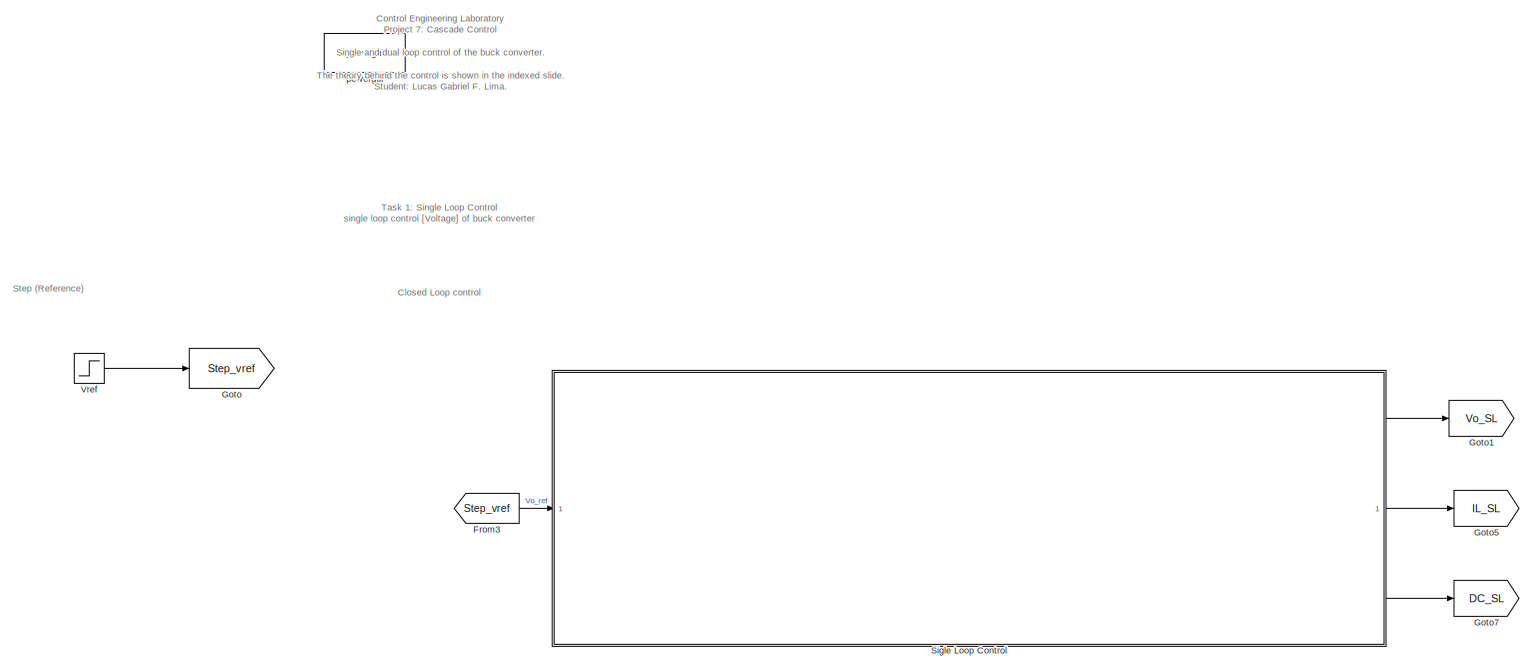
[diagram: root canvas - part 1/5, top left region]
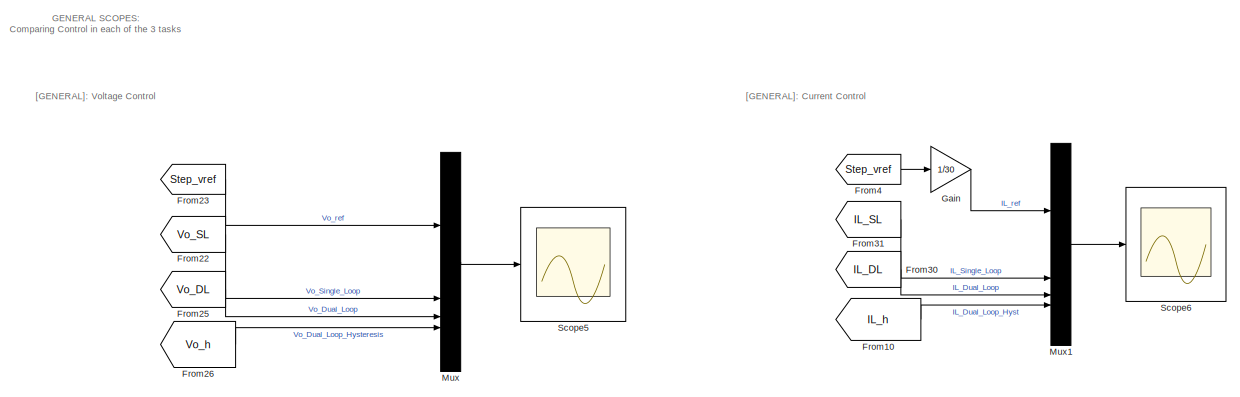
[diagram: root canvas - part 2/5, top center region]
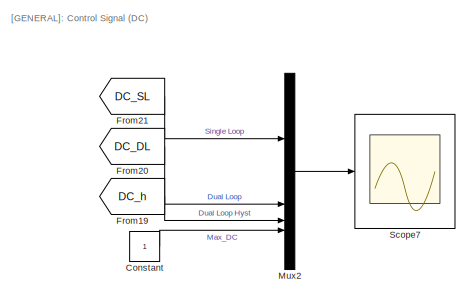
[diagram: root canvas - part 3/5, middle right region]
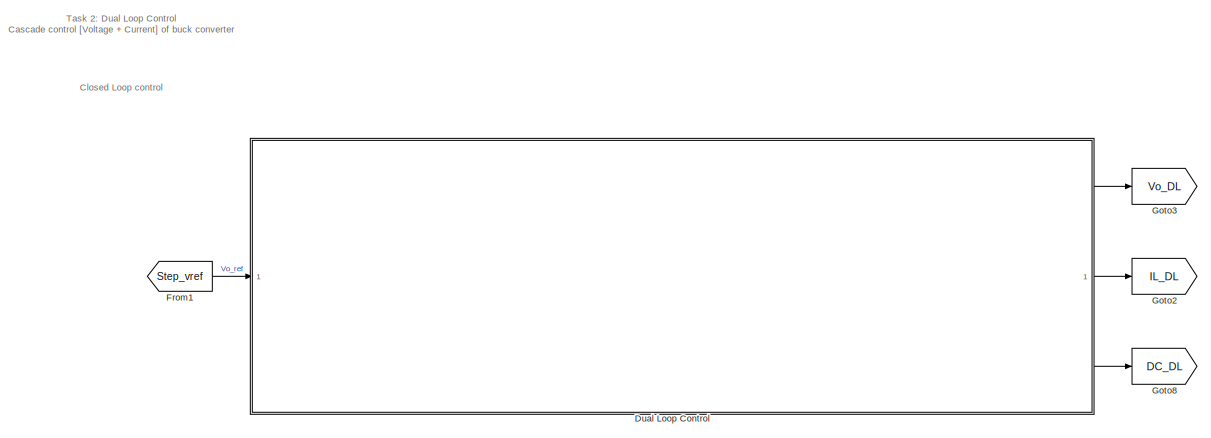
[diagram: root canvas - part 4/5, bottom left region]
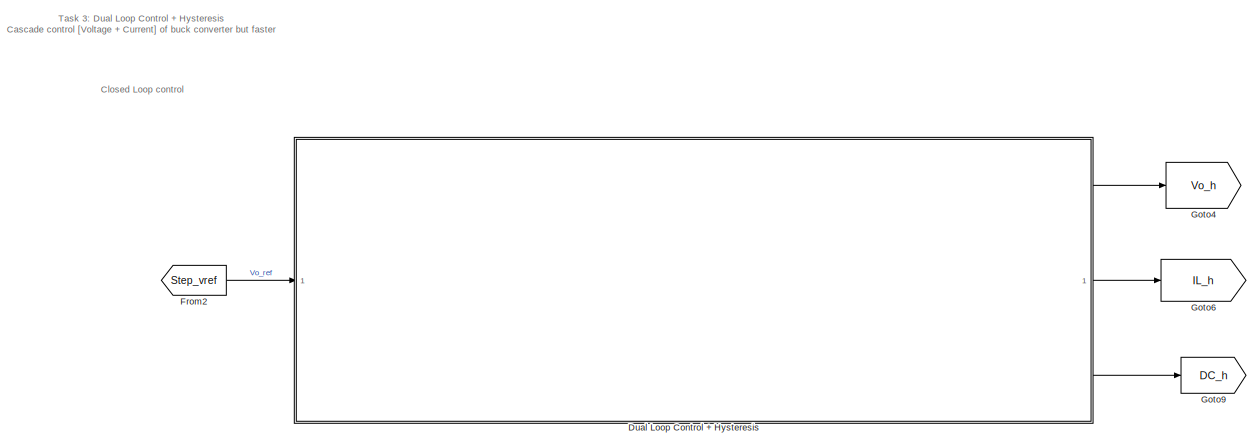
[diagram: root canvas - part 5/5, bottom center region]
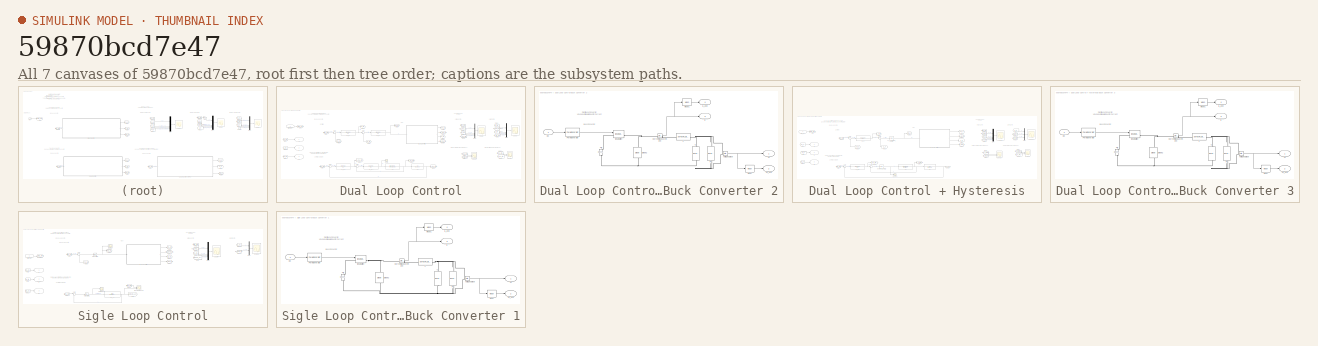
[diagram: thumbnail index - all 7 canvases of the model, root first then tree order]
MODEL slx_59870bcd7e47
KIND model
CONFIG AbsTol = auto
CONFIG EnableMultiTasking = off
CONFIG FixedStep = 1e-8
CONFIG MaxStep = auto
CONFIG MinStep = auto
CONFIG RelTol = 1e-3
CONFIG SampleTimeConstraint = Unconstrained
CONFIG SolverName = FixedStepAuto
CONFIG StartTime = 0.0
CONFIG StopTime = 20e-3
BLOCK [Constant] Constant
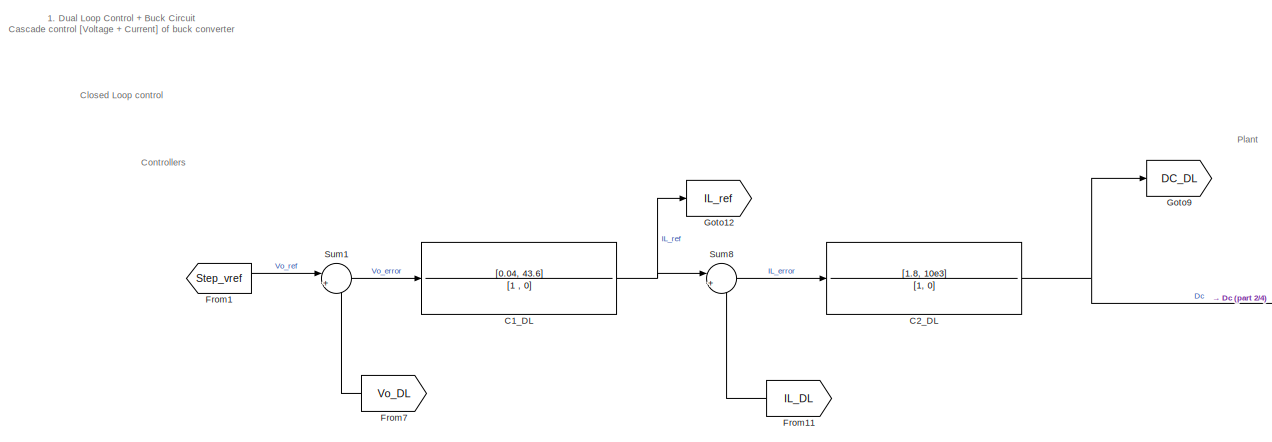
[diagram: Dual Loop Control - part 1/4, top left region]
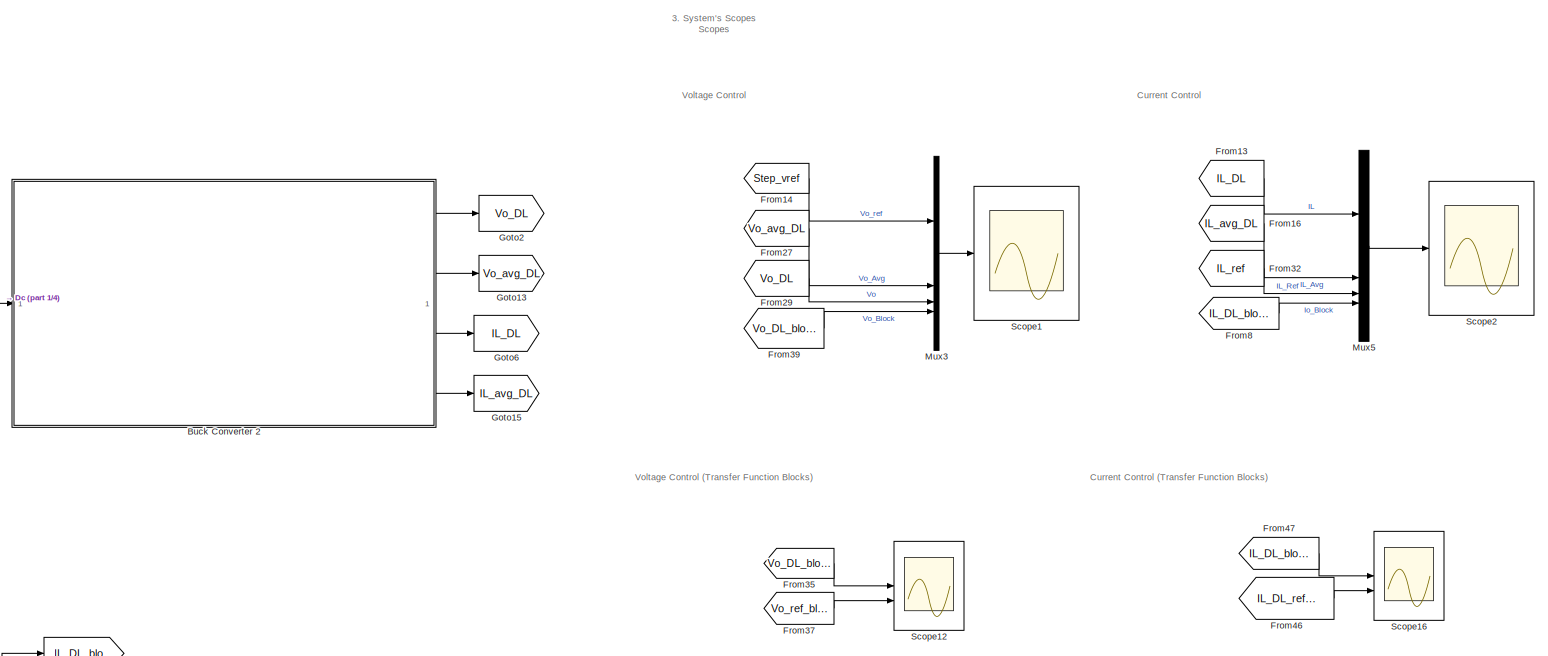
[diagram: Dual Loop Control - part 2/4, middle right region]
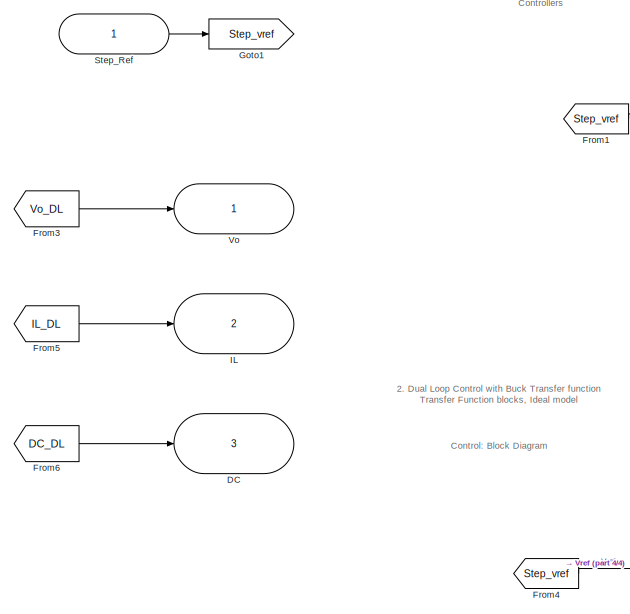
[diagram: Dual Loop Control - part 3/4, middle left region]
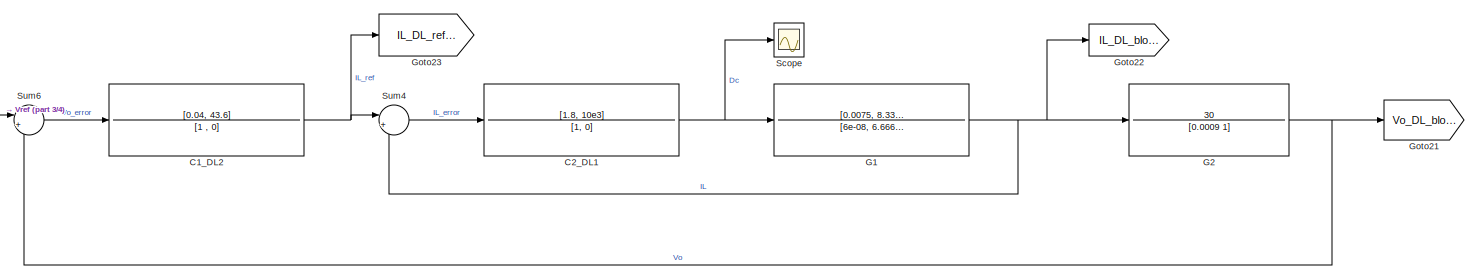
[diagram: Dual Loop Control - part 4/4, bottom center region]
BLOCK [SubSystem] Dual Loop Control
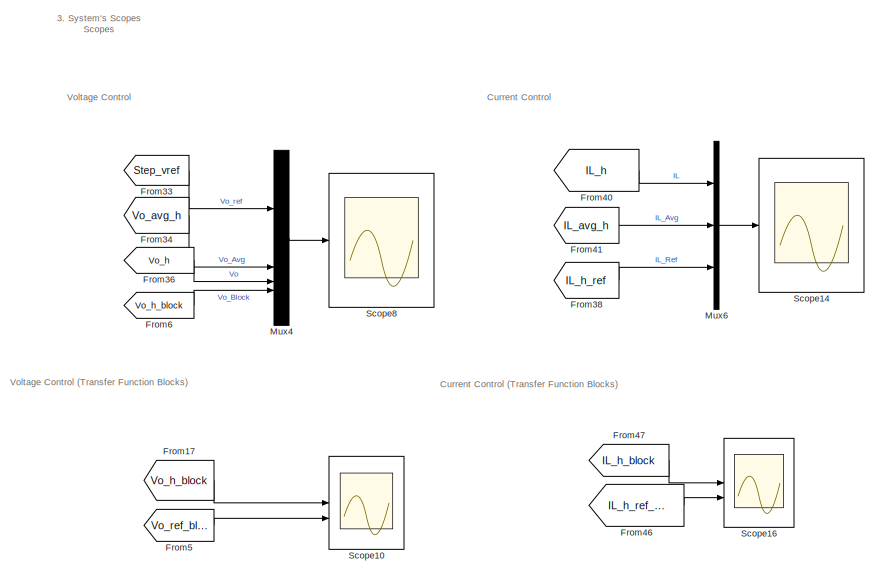
[diagram: Dual Loop Control + Hysteresis - part 1/6, middle right region]
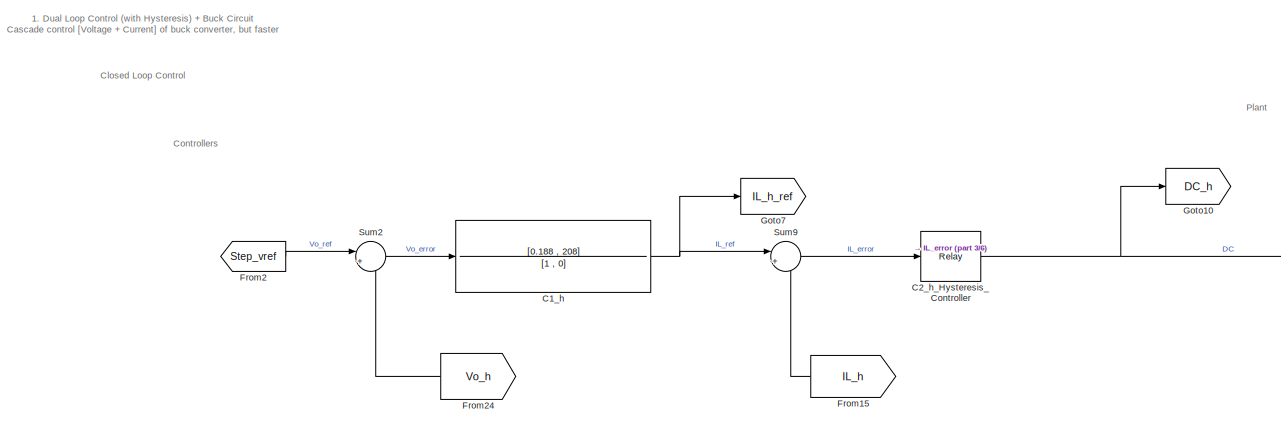
[diagram: Dual Loop Control + Hysteresis - part 2/6, top left region]
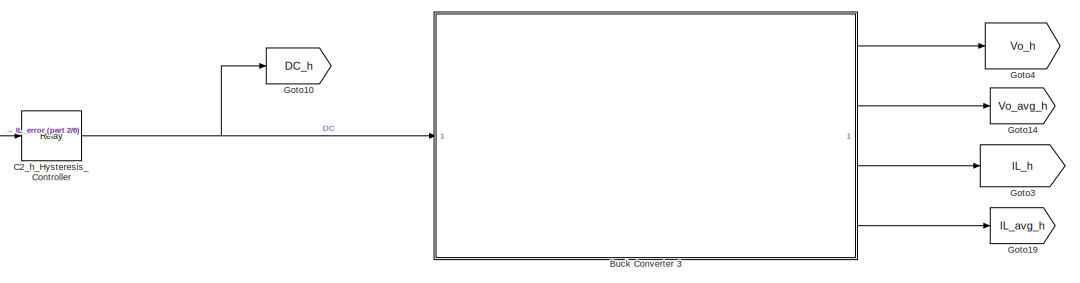
[diagram: Dual Loop Control + Hysteresis - part 3/6, central region]
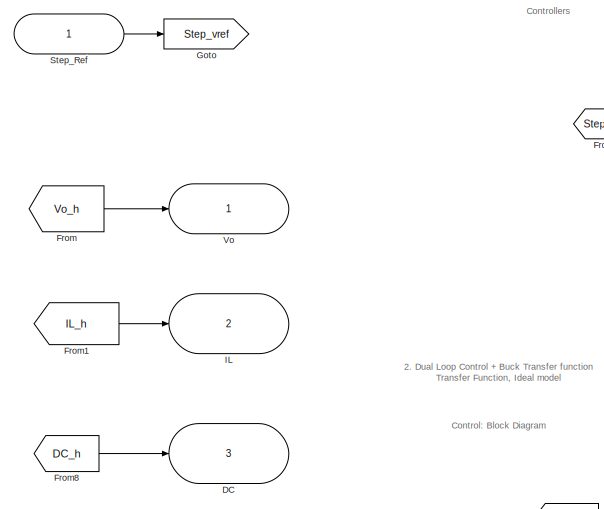
[diagram: Dual Loop Control + Hysteresis - part 4/6, middle left region]
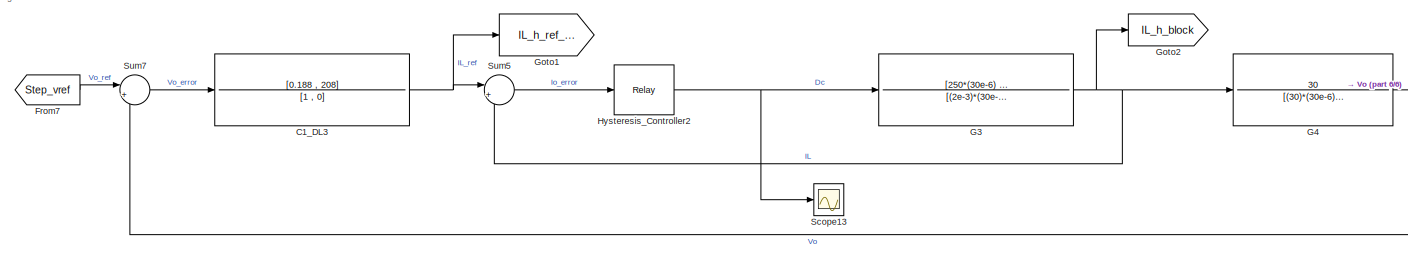
[diagram: Dual Loop Control + Hysteresis - part 5/6, bottom center region]
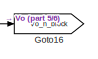
[diagram: Dual Loop Control + Hysteresis - part 6/6, bottom center region]
BLOCK [SubSystem] Dual Loop Control + Hysteresis
BLOCK [SubSystem] Dual Loop Control + Hysteresis/Buck Converter 3
BLOCK [Reference] Dual Loop Control + Hysteresis/Buck Converter 3/C  REF=spsSeriesRLCBranchLib/Series RLC Branch
  LibrarySourceBlock = sps_lib/Passives/Series RLC Branch
  NameLocation = left
  SourceBlock = spsSeriesRLCBranchLib/Series RLC Branch
  SourceType = Series RLC Branch
BLOCK [Reference] Dual Loop Control + Hysteresis/Buck Converter 3/Current Measurement  REF=spsCurrentMeasurementLib/Current Measurement
  LibrarySourceBlock = sps_lib/Sensors and Measurements/Current Measurement
  SourceBlock = spsCurrentMeasurementLib/Current Measurement
  SourceType = Current Measurement
  UserDataPersistent = on
BLOCK [Inport] Dual Loop Control + Hysteresis/Buck Converter 3/DC
BLOCK [Reference] Dual Loop Control + Hysteresis/Buck Converter 3/Diode2  REF=spsDiodeLib/Diode
  LibrarySourceBlock = sps_lib/Power Electronics/Diode
  NameLocation = right
  SourceBlock = spsDiodeLib/Diode
  SourceType = Diode
BLOCK [Outport] Dual Loop Control + Hysteresis/Buck Converter 3/IL
  Port = 3
BLOCK [Outport] Dual Loop Control + Hysteresis/Buck Converter 3/IL_avg
  Port = 4
BLOCK [Reference] Dual Loop Control + Hysteresis/Buck Converter 3/Ideal Switch  REF=spsIdealSwitchLib/Ideal Switch
  LibrarySourceBlock = sps_lib/Power Electronics/Ideal Switch
  SourceBlock = spsIdealSwitchLib/Ideal Switch
  SourceType = Ideal Switch
BLOCK [Reference] Dual Loop Control + Hysteresis/Buck Converter 3/L  REF=spsSeriesRLCBranchLib/Series RLC Branch
  LibrarySourceBlock = sps_lib/Passives/Series RLC Branch
  SourceBlock = spsSeriesRLCBranchLib/Series RLC Branch
  SourceType = Series RLC Branch
BLOCK [Reference] Dual Loop Control + Hysteresis/Buck Converter 3/Mean  REF=spsMeanLib/Mean
  LibrarySourceBlock = sps_lib/Sensors and Measurements/Mean
  SourceBlock = spsMeanLib/Mean
  SourceType = Mean
BLOCK [Reference] Dual Loop Control + Hysteresis/Buck Converter 3/Mean1  REF=spsMeanLib/Mean
  LibrarySourceBlock = sps_lib/Sensors and Measurements/Mean
  SourceBlock = spsMeanLib/Mean
  SourceType = Mean
BLOCK [Reference] Dual Loop Control + Hysteresis/Buck Converter 3/PWM Generator  REF=eePwmGenerator/PWM Generator
  LibrarySourceBlock = ee_sl_lib/Pulse Width\nModulation/PWM Generator
  SourceBlock = eePwmGenerator/PWM Generator
  SourceType = PWM Generator
BLOCK [Reference] Dual Loop Control + Hysteresis/Buck Converter 3/R  REF=spsSeriesRLCBranchLib/Series RLC Branch
  LibrarySourceBlock = sps_lib/Passives/Series RLC Branch
  NameLocation = right
  SourceBlock = spsSeriesRLCBranchLib/Series RLC Branch
  SourceType = Series RLC Branch
BLOCK [Reference] Dual Loop Control + Hysteresis/Buck Converter 3/Vg  REF=spsDCVoltageSourceLib/DC Voltage Source
  LibrarySourceBlock = sps_lib/Sources/DC Voltage Source
  NameLocation = left
  SourceBlock = spsDCVoltageSourceLib/DC Voltage Source
  SourceType = DC Voltage Source
BLOCK [Outport] Dual Loop Control + Hysteresis/Buck Converter 3/Vo
BLOCK [Outport] Dual Loop Control + Hysteresis/Buck Converter 3/Vo_avg
  Port = 2
BLOCK [Reference] Dual Loop Control + Hysteresis/Buck Converter 3/Voltage Output  REF=spsVoltageMeasurementLib/Voltage Measurement
  LibrarySourceBlock = sps_lib/Sensors and Measurements/Voltage Measurement
  SourceBlock = spsVoltageMeasurementLib/Voltage Measurement
  SourceType = Voltage Measurement
  UserDataPersistent = on
BLOCK [TransferFcn] Dual Loop Control + Hysteresis/C1_DL3
  Denominator = [1 , 0]
  Numerator = [0.188 , 208]
BLOCK [TransferFcn] Dual Loop Control + Hysteresis/C1_h
  Denominator = [1 , 0]
  Numerator = [0.188 , 208]
BLOCK [Relay] Dual Loop Control + Hysteresis/C2_h_Hysteresis_Controller
  OffSwitchValue = -0.2/2
  OnSwitchValue = 0.2/2
BLOCK [Outport] Dual Loop Control + Hysteresis/DC
  Port = 3
BLOCK [From] Dual Loop Control + Hysteresis/From
  GotoTag = Vo_h
BLOCK [From] Dual Loop Control + Hysteresis/From1
  GotoTag = IL_h
BLOCK [From] Dual Loop Control + Hysteresis/From15
  GotoTag = IL_h
  NameLocation = top
BLOCK [From] Dual Loop Control + Hysteresis/From17
  GotoTag = Vo_h_block
BLOCK [From] Dual Loop Control + Hysteresis/From2
  GotoTag = Step_vref
BLOCK [From] Dual Loop Control + Hysteresis/From24
  GotoTag = Vo_h
  NameLocation = top
BLOCK [From] Dual Loop Control + Hysteresis/From33
  GotoTag = Step_vref
BLOCK [From] Dual Loop Control + Hysteresis/From34
  GotoTag = Vo_avg_h
BLOCK [From] Dual Loop Control + Hysteresis/From36
  GotoTag = Vo_h
BLOCK [From] Dual Loop Control + Hysteresis/From38
  GotoTag = IL_h_ref
BLOCK [From] Dual Loop Control + Hysteresis/From40
  GotoTag = IL_h
BLOCK [From] Dual Loop Control + Hysteresis/From41
  GotoTag = IL_avg_h
BLOCK [From] Dual Loop Control + Hysteresis/From46
  GotoTag = IL_h_ref_block
  NameLocation = top
BLOCK [From] Dual Loop Control + Hysteresis/From47
  GotoTag = IL_h_block
  NameLocation = top
BLOCK [From] Dual Loop Control + Hysteresis/From5
  GotoTag = Vo_ref_block
  NameLocation = top
BLOCK [From] Dual Loop Control + Hysteresis/From6
  GotoTag = Vo_h_block
BLOCK [From] Dual Loop Control + Hysteresis/From7
  GotoTag = Step_vref
BLOCK [From] Dual Loop Control + Hysteresis/From8
  GotoTag = DC_h
BLOCK [TransferFcn] Dual Loop Control + Hysteresis/G3
  Denominator = [(2e-3)*(30e-6)  (2e-3)/30  1]
  Numerator = [250*(30e-6) (250/30)]
BLOCK [TransferFcn] Dual Loop Control + Hysteresis/G4
  Denominator = [(30)*(30e-6) 1]
  Numerator = 30
BLOCK [Goto] Dual Loop Control + Hysteresis/Goto
  GotoTag = Step_vref
BLOCK [Goto] Dual Loop Control + Hysteresis/Goto1
  GotoTag = IL_h_ref_block
BLOCK [Goto] Dual Loop Control + Hysteresis/Goto10
  GotoTag = DC_h
  NameLocation = top
BLOCK [Goto] Dual Loop Control + Hysteresis/Goto14
  GotoTag = Vo_avg_h
BLOCK [Goto] Dual Loop Control + Hysteresis/Goto16
  GotoTag = Vo_h_block
BLOCK [Goto] Dual Loop Control + Hysteresis/Goto19
  GotoTag = IL_avg_h
BLOCK [Goto] Dual Loop Control + Hysteresis/Goto2
  GotoTag = IL_h_block
BLOCK [Goto] Dual Loop Control + Hysteresis/Goto3
  GotoTag = IL_h
  NameLocation = top
BLOCK [Goto] Dual Loop Control + Hysteresis/Goto4
  GotoTag = Vo_h
  NameLocation = top
BLOCK [Goto] Dual Loop Control + Hysteresis/Goto7
  GotoTag = IL_h_ref
  NameLocation = top
BLOCK [Relay] Dual Loop Control + Hysteresis/Hysteresis_Controller2
  OffSwitchValue = -0.2/2
  OnSwitchValue = 0.2/2
BLOCK [Outport] Dual Loop Control + Hysteresis/IL
  Port = 2
BLOCK [Mux] Dual Loop Control + Hysteresis/Mux4
  DisplayOption = bar
BLOCK [Mux] Dual Loop Control + Hysteresis/Mux6
  DisplayOption = bar
  Inputs = 3
BLOCK [Scope] Dual Loop Control + Hysteresis/Scope10
  Floating = off
  NumInputPorts = 2
  ScopeSpecificationString = Simulink.scopes.TimeScopeBlockCfg('CurrentConfiguration', extmgr.ConfigurationSet(extmgr.Configuration('Core','General UI',true),extmgr.Configuration('Core','Source UI',true),extmgr.Configuration('Sources','WiredSimulink',true,'DataLoggingVariableName','ScopeData5'),extmgr.Configuration('Visuals','Time Domain',true,'SerializedDisplays',{struct('MinYLimReal','-8.34782','MaxYLimReal','75.13037','YLa...<+1492ch>
BLOCK [Scope] Dual Loop Control + Hysteresis/Scope13
  Floating = off
  NumInputPorts = 1
  ScopeSpecificationString = Simulink.scopes.TimeScopeBlockCfg('CurrentConfiguration', extmgr.ConfigurationSet(extmgr.Configuration('Core','General UI',true),extmgr.Configuration('Core','Source UI',true),extmgr.Configuration('Sources','WiredSimulink',true,'DataLoggingVariableName','ScopeData8'),extmgr.Configuration('Visuals','Time Domain',true,'SerializedDisplays',{struct('MinYLimReal','-0.125','MaxYLimReal','1.125','YLabelRe...<+1403ch>
BLOCK [Scope] Dual Loop Control + Hysteresis/Scope14
  Floating = off
  NumInputPorts = 1
  ScopeSpecificationString = Simulink.scopes.TimeScopeBlockCfg('CurrentConfiguration', extmgr.ConfigurationSet(extmgr.Configuration('Core','General UI',true),extmgr.Configuration('Core','Source UI',true),extmgr.Configuration('Sources','WiredSimulink',true,'DataLoggingVariableName','ScopeData9'),extmgr.Configuration('Visuals','Time Domain',true,'SerializedDisplays',{struct('MinYLimReal','-1.42066','MaxYLimReal','12.78592','YLa...<+1702ch>
BLOCK [Scope] Dual Loop Control + Hysteresis/Scope16
  Floating = off
  NumInputPorts = 2
  ScopeSpecificationString = Simulink.scopes.TimeScopeBlockCfg('CurrentConfiguration', extmgr.ConfigurationSet(extmgr.Configuration('Core','General UI',true),extmgr.Configuration('Core','Source UI',true),extmgr.Configuration('Sources','WiredSimulink',true,'DataLoggingVariableName','ScopeData1'),extmgr.Configuration('Visuals','Time Domain',true,'SerializedDisplays',{struct('MinYLimReal','1.88078','MaxYLimReal','3.06942','YLabe...<+1488ch>
BLOCK [Scope] Dual Loop Control + Hysteresis/Scope8
  Floating = off
  NumInputPorts = 1
  ScopeSpecificationString = Simulink.scopes.TimeScopeBlockCfg('CurrentConfiguration', extmgr.ConfigurationSet(extmgr.Configuration('Core','General UI',true),extmgr.Configuration('Core','Source UI',true),extmgr.Configuration('Sources','WiredSimulink',true,'DataLoggingVariableName','ScopeData1'),extmgr.Configuration('Visuals','Time Domain',true,'SerializedDisplays',{struct('MinYLimReal','59.43849','MaxYLimReal','66.21696','YLa...<+1674ch>
BLOCK [Inport] Dual Loop Control + Hysteresis/Step_Ref
BLOCK [Sum] Dual Loop Control + Hysteresis/Sum2
  Inputs = |+-
BLOCK [Sum] Dual Loop Control + Hysteresis/Sum5
  Inputs = |+-
BLOCK [Sum] Dual Loop Control + Hysteresis/Sum7
  Inputs = |+-
BLOCK [Sum] Dual Loop Control + Hysteresis/Sum9
  Inputs = |+-
BLOCK [Outport] Dual Loop Control + Hysteresis/Vo
BLOCK [SubSystem] Dual Loop Control/Buck Converter 2
BLOCK [Reference] Dual Loop Control/Buck Converter 2/C  REF=spsSeriesRLCBranchLib/Series RLC Branch
  LibrarySourceBlock = sps_lib/Passives/Series RLC Branch
  NameLocation = left
  SourceBlock = spsSeriesRLCBranchLib/Series RLC Branch
  SourceType = Series RLC Branch
BLOCK [Reference] Dual Loop Control/Buck Converter 2/Current Measurement  REF=spsCurrentMeasurementLib/Current Measurement
  LibrarySourceBlock = sps_lib/Sensors and Measurements/Current Measurement
  SourceBlock = spsCurrentMeasurementLib/Current Measurement
  SourceType = Current Measurement
  UserDataPersistent = on
BLOCK [Inport] Dual Loop Control/Buck Converter 2/DC
BLOCK [Reference] Dual Loop Control/Buck Converter 2/Diode2  REF=spsDiodeLib/Diode
  LibrarySourceBlock = sps_lib/Power Electronics/Diode
  NameLocation = right
  SourceBlock = spsDiodeLib/Diode
  SourceType = Diode
BLOCK [Outport] Dual Loop Control/Buck Converter 2/IL
  Port = 3
BLOCK [Outport] Dual Loop Control/Buck Converter 2/IL_avg
  Port = 4
BLOCK [Reference] Dual Loop Control/Buck Converter 2/Ideal Switch  REF=spsIdealSwitchLib/Ideal Switch
  LibrarySourceBlock = sps_lib/Power Electronics/Ideal Switch
  SourceBlock = spsIdealSwitchLib/Ideal Switch
  SourceType = Ideal Switch
BLOCK [Reference] Dual Loop Control/Buck Converter 2/L  REF=spsSeriesRLCBranchLib/Series RLC Branch
  LibrarySourceBlock = sps_lib/Passives/Series RLC Branch
  SourceBlock = spsSeriesRLCBranchLib/Series RLC Branch
  SourceType = Series RLC Branch
BLOCK [Reference] Dual Loop Control/Buck Converter 2/Mean  REF=spsMeanLib/Mean
  LibrarySourceBlock = sps_lib/Sensors and Measurements/Mean
  SourceBlock = spsMeanLib/Mean
  SourceType = Mean
BLOCK [Reference] Dual Loop Control/Buck Converter 2/Mean1  REF=spsMeanLib/Mean
  LibrarySourceBlock = sps_lib/Sensors and Measurements/Mean
  SourceBlock = spsMeanLib/Mean
  SourceType = Mean
BLOCK [Reference] Dual Loop Control/Buck Converter 2/PWM Generator  REF=eePwmGenerator/PWM Generator
  LibrarySourceBlock = ee_sl_lib/Pulse Width\nModulation/PWM Generator
  SourceBlock = eePwmGenerator/PWM Generator
  SourceType = PWM Generator
BLOCK [Reference] Dual Loop Control/Buck Converter 2/R  REF=spsSeriesRLCBranchLib/Series RLC Branch
  LibrarySourceBlock = sps_lib/Passives/Series RLC Branch
  NameLocation = right
  SourceBlock = spsSeriesRLCBranchLib/Series RLC Branch
  SourceType = Series RLC Branch
BLOCK [Reference] Dual Loop Control/Buck Converter 2/Vg  REF=spsDCVoltageSourceLib/DC Voltage Source
  LibrarySourceBlock = sps_lib/Sources/DC Voltage Source
  NameLocation = left
  SourceBlock = spsDCVoltageSourceLib/DC Voltage Source
  SourceType = DC Voltage Source
BLOCK [Outport] Dual Loop Control/Buck Converter 2/Vo
BLOCK [Outport] Dual Loop Control/Buck Converter 2/Vo_avg
  Port = 2
BLOCK [Reference] Dual Loop Control/Buck Converter 2/Voltage Output  REF=spsVoltageMeasurementLib/Voltage Measurement
  LibrarySourceBlock = sps_lib/Sensors and Measurements/Voltage Measurement
  SourceBlock = spsVoltageMeasurementLib/Voltage Measurement
  SourceType = Voltage Measurement
  UserDataPersistent = on
BLOCK [TransferFcn] Dual Loop Control/C1_DL
  Denominator = [1 , 0]
  Numerator = [0.04, 43.6]
BLOCK [TransferFcn] Dual Loop Control/C1_DL2
  Denominator = [1 , 0]
  Numerator = [0.04, 43.6]
BLOCK [TransferFcn] Dual Loop Control/C2_DL
  Denominator = [1, 0]
  Numerator = [1.8, 10e3]
BLOCK [TransferFcn] Dual Loop Control/C2_DL1
  Denominator = [1, 0]
  Numerator = [1.8, 10e3]
BLOCK [Outport] Dual Loop Control/DC
  Port = 3
BLOCK [From] Dual Loop Control/From1
  GotoTag = Step_vref
BLOCK [From] Dual Loop Control/From11
  GotoTag = IL_DL
  NameLocation = top
BLOCK [From] Dual Loop Control/From13
  GotoTag = IL_DL
BLOCK [From] Dual Loop Control/From14
  GotoTag = Step_vref
BLOCK [From] Dual Loop Control/From16
  GotoTag = IL_avg_DL
BLOCK [From] Dual Loop Control/From27
  GotoTag = Vo_avg_DL
BLOCK [From] Dual Loop Control/From29
  GotoTag = Vo_DL
BLOCK [From] Dual Loop Control/From3
  GotoTag = Vo_DL
BLOCK [From] Dual Loop Control/From32
  GotoTag = IL_ref
BLOCK [From] Dual Loop Control/From35
  GotoTag = Vo_DL_block
BLOCK [From] Dual Loop Control/From37
  GotoTag = Vo_ref_block
  NameLocation = top
BLOCK [From] Dual Loop Control/From39
  GotoTag = Vo_DL_block
BLOCK [From] Dual Loop Control/From4
  GotoTag = Step_vref
BLOCK [From] Dual Loop Control/From46
  GotoTag = IL_DL_ref_block
  NameLocation = top
BLOCK [From] Dual Loop Control/From47
  GotoTag = IL_DL_block
  NameLocation = top
BLOCK [From] Dual Loop Control/From5
  GotoTag = IL_DL
BLOCK [From] Dual Loop Control/From6
  GotoTag = DC_DL
BLOCK [From] Dual Loop Control/From7
  GotoTag = Vo_DL
  NameLocation = top
BLOCK [From] Dual Loop Control/From8
  GotoTag = IL_DL_block
BLOCK [TransferFcn] Dual Loop Control/G1
  Denominator = [6e-08, 6.6667e-05 ,1]
  Numerator = [0.0075, 8.3333]
BLOCK [TransferFcn] Dual Loop Control/G2
  Denominator = [0.0009 1]
  Numerator = 30
BLOCK [Goto] Dual Loop Control/Goto1
  GotoTag = Step_vref
BLOCK [Goto] Dual Loop Control/Goto12
  GotoTag = IL_ref
BLOCK [Goto] Dual Loop Control/Goto13
  GotoTag = Vo_avg_DL
BLOCK [Goto] Dual Loop Control/Goto15
  GotoTag = IL_avg_DL
BLOCK [Goto] Dual Loop Control/Goto2
  GotoTag = Vo_DL
BLOCK [Goto] Dual Loop Control/Goto21
  GotoTag = Vo_DL_block
BLOCK [Goto] Dual Loop Control/Goto22
  GotoTag = IL_DL_block
BLOCK [Goto] Dual Loop Control/Goto23
  GotoTag = IL_DL_ref_block
BLOCK [Goto] Dual Loop Control/Goto6
  GotoTag = IL_DL
  NameLocation = top
BLOCK [Goto] Dual Loop Control/Goto9
  GotoTag = DC_DL
  NameLocation = top
BLOCK [Outport] Dual Loop Control/IL
  Port = 2
BLOCK [Mux] Dual Loop Control/Mux3
  DisplayOption = bar
BLOCK [Mux] Dual Loop Control/Mux5
  DisplayOption = bar
BLOCK [Scope] Dual Loop Control/Scope
  Floating = off
  NumInputPorts = 1
  ScopeSpecificationString = Simulink.scopes.TimeScopeBlockCfg('CurrentConfiguration', extmgr.ConfigurationSet(extmgr.Configuration('Core','General UI',true),extmgr.Configuration('Core','Source UI',true),extmgr.Configuration('Sources','WiredSimulink',true,'DataLoggingVariableName','ScopeData1'),extmgr.Configuration('Visuals','Time Domain',true,'SerializedDisplays',{struct('MinYLimReal','-0.53672','MaxYLimReal','4.85964','YLab...<+1413ch>
BLOCK [Scope] Dual Loop Control/Scope1
  Floating = off
  NumInputPorts = 1
  ScopeSpecificationString = Simulink.scopes.TimeScopeBlockCfg('CurrentConfiguration', extmgr.ConfigurationSet(extmgr.Configuration('Core','General UI',true),extmgr.Configuration('Core','Source UI',true),extmgr.Configuration('Sources','WiredSimulink',true,'DataLoggingVariableName','ScopeData2'),extmgr.Configuration('Visuals','Time Domain',true,'SerializedDisplays',{struct('MinYLimReal','-7.5','MaxYLimReal','67.5','YLabelReal'...<+1871ch>
BLOCK [Scope] Dual Loop Control/Scope12
  Floating = off
  NumInputPorts = 2
  ScopeSpecificationString = Simulink.scopes.TimeScopeBlockCfg('CurrentConfiguration', extmgr.ConfigurationSet(extmgr.Configuration('Core','General UI',true),extmgr.Configuration('Core','Source UI',true),extmgr.Configuration('Sources','WiredSimulink',true,'DataLoggingVariableName','ScopeData7'),extmgr.Configuration('Visuals','Time Domain',true,'SerializedDisplays',{struct('MinYLimReal','-8.34733','MaxYLimReal','75.12594','YLa...<+1492ch>
BLOCK [Scope] Dual Loop Control/Scope16
  Floating = off
  NumInputPorts = 2
  ScopeSpecificationString = Simulink.scopes.TimeScopeBlockCfg('CurrentConfiguration', extmgr.ConfigurationSet(extmgr.Configuration('Core','General UI',true),extmgr.Configuration('Core','Source UI',true),extmgr.Configuration('Sources','WiredSimulink',true,'DataLoggingVariableName','ScopeData2'),extmgr.Configuration('Visuals','Time Domain',true,'SerializedDisplays',{struct('MinYLimReal','-8.34733','MaxYLimReal','75.12594','YLa...<+1494ch>
BLOCK [Scope] Dual Loop Control/Scope2
  Floating = off
  NumInputPorts = 1
  ScopeSpecificationString = Simulink.scopes.TimeScopeBlockCfg('CurrentConfiguration', extmgr.ConfigurationSet(extmgr.Configuration('Core','General UI',true),extmgr.Configuration('Core','Source UI',true),extmgr.Configuration('Sources','WiredSimulink',true,'DataLoggingVariableName','ScopeData2'),extmgr.Configuration('Visuals','Time Domain',true,'SerializedDisplays',{struct('MinYLimReal','-0.31623','MaxYLimReal','2.8461','YLabe...<+2117ch>
BLOCK [Inport] Dual Loop Control/Step_Ref
BLOCK [Sum] Dual Loop Control/Sum1
  Inputs = |+-
BLOCK [Sum] Dual Loop Control/Sum4
  Inputs = |+-
BLOCK [Sum] Dual Loop Control/Sum6
  Inputs = |+-
BLOCK [Sum] Dual Loop Control/Sum8
  Inputs = |+-
BLOCK [Outport] Dual Loop Control/Vo
BLOCK [From] From1
  GotoTag = Step_vref
BLOCK [From] From10
  GotoTag = IL_h
BLOCK [From] From19
  GotoTag = DC_h
BLOCK [From] From2
  GotoTag = Step_vref
BLOCK [From] From20
  GotoTag = DC_DL
BLOCK [From] From21
  GotoTag = DC_SL
BLOCK [From] From22
  GotoTag = Vo_SL
BLOCK [From] From23
  GotoTag = Step_vref
BLOCK [From] From25
  GotoTag = Vo_DL
BLOCK [From] From26
  GotoTag = Vo_h
BLOCK [From] From3
  GotoTag = Step_vref
BLOCK [From] From30
  GotoTag = IL_DL
BLOCK [From] From31
  GotoTag = IL_SL
BLOCK [From] From4
  GotoTag = Step_vref
BLOCK [Gain] Gain
  Gain = 1/30
BLOCK [Goto] Goto
  GotoTag = Step_vref
BLOCK [Goto] Goto1
  GotoTag = Vo_SL
BLOCK [Goto] Goto2
  GotoTag = IL_DL
BLOCK [Goto] Goto3
  GotoTag = Vo_DL
BLOCK [Goto] Goto4
  GotoTag = Vo_h
BLOCK [Goto] Goto5
  GotoTag = IL_SL
BLOCK [Goto] Goto6
  GotoTag = IL_h
BLOCK [Goto] Goto7
  GotoTag = DC_SL
BLOCK [Goto] Goto8
  GotoTag = DC_DL
BLOCK [Goto] Goto9
  GotoTag = DC_h
BLOCK [Mux] Mux
  DisplayOption = bar
BLOCK [Mux] Mux1
  DisplayOption = bar
BLOCK [Mux] Mux2
  DisplayOption = bar
BLOCK [Scope] Scope5
  Floating = off
  NumInputPorts = 1
  ScopeSpecificationString = Simulink.scopes.TimeScopeBlockCfg('CurrentConfiguration', extmgr.ConfigurationSet(extmgr.Configuration('Core','General UI',true),extmgr.Configuration('Core','Source UI',true),extmgr.Configuration('Sources','WiredSimulink',true,'DataLoggingVariableName','ScopeData6'),extmgr.Configuration('Visuals','Time Domain',true,'SerializedDisplays',{struct('MinYLimReal','58.96646','MaxYLimReal','67.50488','YLa...<+1591ch>
BLOCK [Scope] Scope6
  Floating = off
  NumInputPorts = 1
  ScopeSpecificationString = Simulink.scopes.TimeScopeBlockCfg('CurrentConfiguration', extmgr.ConfigurationSet(extmgr.Configuration('Core','General UI',true),extmgr.Configuration('Core','Source UI',true),extmgr.Configuration('Sources','WiredSimulink',true,'DataLoggingVariableName','ScopeData7'),extmgr.Configuration('Visuals','Time Domain',true,'SerializedDisplays',{struct('MinYLimReal','-1.23111','MaxYLimReal','11.09844','YLa...<+1608ch>
BLOCK [Scope] Scope7
  Floating = off
  NumInputPorts = 1
  ScopeSpecificationString = Simulink.scopes.TimeScopeBlockCfg('CurrentConfiguration', extmgr.ConfigurationSet(extmgr.Configuration('Core','General UI',true),extmgr.Configuration('Core','Source UI',true),extmgr.Configuration('Sources','WiredSimulink',true,'DataLoggingVariableName','ScopeData8'),extmgr.Configuration('Visuals','Time Domain',true,'PlotType','Line','SerializedDisplays',{struct('MinYLimReal','-0.78876','MaxYLimRea...<+1987ch>
BLOCK [SubSystem] Sigle Loop Control
BLOCK [Scope] Sigle Loop Control/Block Response3
  Floating = off
  NumInputPorts = 2
  ScopeSpecificationString = Simulink.scopes.TimeScopeBlockCfg('CurrentConfiguration', extmgr.ConfigurationSet(extmgr.Configuration('Core','General UI',true),extmgr.Configuration('Core','Source UI',true),extmgr.Configuration('Sources','WiredSimulink',true,'DataLoggingVariableName','ScopeData6'),extmgr.Configuration('Visuals','Time Domain',true,'SerializedDisplays',{struct('MinYLimReal','57.05944','MaxYLimReal','72.38976','YLa...<+2164ch>
BLOCK [SubSystem] Sigle Loop Control/Buck Converter 1
BLOCK [Reference] Sigle Loop Control/Buck Converter 1/C  REF=spsSeriesRLCBranchLib/Series RLC Branch
  LibrarySourceBlock = sps_lib/Passives/Series RLC Branch
  NameLocation = left
  SourceBlock = spsSeriesRLCBranchLib/Series RLC Branch
  SourceType = Series RLC Branch
BLOCK [Reference] Sigle Loop Control/Buck Converter 1/Current Measurement  REF=spsCurrentMeasurementLib/Current Measurement
  LibrarySourceBlock = sps_lib/Sensors and Measurements/Current Measurement
  SourceBlock = spsCurrentMeasurementLib/Current Measurement
  SourceType = Current Measurement
  UserDataPersistent = on
BLOCK [Inport] Sigle Loop Control/Buck Converter 1/DC
BLOCK [Reference] Sigle Loop Control/Buck Converter 1/Diode2  REF=spsDiodeLib/Diode
  LibrarySourceBlock = sps_lib/Power Electronics/Diode
  NameLocation = right
  SourceBlock = spsDiodeLib/Diode
  SourceType = Diode
BLOCK [Outport] Sigle Loop Control/Buck Converter 1/IL
  Port = 3
BLOCK [Outport] Sigle Loop Control/Buck Converter 1/IL_avg
  Port = 4
BLOCK [Reference] Sigle Loop Control/Buck Converter 1/Ideal Switch  REF=spsIdealSwitchLib/Ideal Switch
  LibrarySourceBlock = sps_lib/Power Electronics/Ideal Switch
  SourceBlock = spsIdealSwitchLib/Ideal Switch
  SourceType = Ideal Switch
BLOCK [Reference] Sigle Loop Control/Buck Converter 1/L  REF=spsSeriesRLCBranchLib/Series RLC Branch
  LibrarySourceBlock = sps_lib/Passives/Series RLC Branch
  SourceBlock = spsSeriesRLCBranchLib/Series RLC Branch
  SourceType = Series RLC Branch
BLOCK [Reference] Sigle Loop Control/Buck Converter 1/Mean  REF=spsMeanLib/Mean
  LibrarySourceBlock = sps_lib/Sensors and Measurements/Mean
  SourceBlock = spsMeanLib/Mean
  SourceType = Mean
BLOCK [Reference] Sigle Loop Control/Buck Converter 1/Mean1  REF=spsMeanLib/Mean
  LibrarySourceBlock = sps_lib/Sensors and Measurements/Mean
  SourceBlock = spsMeanLib/Mean
  SourceType = Mean
BLOCK [Reference] Sigle Loop Control/Buck Converter 1/PWM Generator  REF=eePwmGenerator/PWM Generator
  LibrarySourceBlock = ee_sl_lib/Pulse Width\nModulation/PWM Generator
  SourceBlock = eePwmGenerator/PWM Generator
  SourceType = PWM Generator
BLOCK [Reference] Sigle Loop Control/Buck Converter 1/R  REF=spsSeriesRLCBranchLib/Series RLC Branch
  LibrarySourceBlock = sps_lib/Passives/Series RLC Branch
  NameLocation = right
  SourceBlock = spsSeriesRLCBranchLib/Series RLC Branch
  SourceType = Series RLC Branch
BLOCK [Reference] Sigle Loop Control/Buck Converter 1/Vg  REF=spsDCVoltageSourceLib/DC Voltage Source
  LibrarySourceBlock = sps_lib/Sources/DC Voltage Source
  NameLocation = left
  SourceBlock = spsDCVoltageSourceLib/DC Voltage Source
  SourceType = DC Voltage Source
BLOCK [Outport] Sigle Loop Control/Buck Converter 1/Vo
BLOCK [Outport] Sigle Loop Control/Buck Converter 1/Vo_avg
  Port = 2
BLOCK [Reference] Sigle Loop Control/Buck Converter 1/Voltage Output  REF=spsVoltageMeasurementLib/Voltage Measurement
  LibrarySourceBlock = sps_lib/Sensors and Measurements/Voltage Measurement
  SourceBlock = spsVoltageMeasurementLib/Voltage Measurement
  SourceType = Voltage Measurement
  UserDataPersistent = on
BLOCK [Scope] Sigle Loop Control/Control Signal3
  Floating = off
  NumInputPorts = 1
  ScopeSpecificationString = Simulink.scopes.TimeScopeBlockCfg('CurrentConfiguration', extmgr.ConfigurationSet(extmgr.Configuration('Core','General UI',true),extmgr.Configuration('Core','Source UI',true),extmgr.Configuration('Sources','WiredSimulink',true,'DataLoggingVariableName','ScopeData9'),extmgr.Configuration('Visuals','Time Domain',true,'SerializedDisplays',{struct('MinYLimReal','-0.78786','MaxYLimReal','7.10751','YLab...<+1615ch>
BLOCK [Outport] Sigle Loop Control/DC
  Port = 3
BLOCK [From] Sigle Loop Control/From
  GotoTag = Step_vref
BLOCK [From] Sigle Loop Control/From1
  GotoTag = IL_SL
  NameLocation = top
BLOCK [From] Sigle Loop Control/From10
  GotoTag = DC_SL
BLOCK [From] Sigle Loop Control/From12
  GotoTag = Vo_avg_SL
BLOCK [From] Sigle Loop Control/From18
  GotoTag = Step_vref
BLOCK [From] Sigle Loop Control/From2
  GotoTag = Vo_SL
  NameLocation = top
BLOCK [From] Sigle Loop Control/From28
  GotoTag = Step_vref
BLOCK [From] Sigle Loop Control/From3
  GotoTag = Step_vref
BLOCK [From] Sigle Loop Control/From42
  GotoTag = IL_SL
BLOCK [From] Sigle Loop Control/From43
  GotoTag = IL_avg_SL
BLOCK [From] Sigle Loop Control/From6
  GotoTag = Vo_SL
BLOCK [From] Sigle Loop Control/From8
  GotoTag = Vo_SL
  NameLocation = top
BLOCK [From] Sigle Loop Control/From9
  GotoTag = Closed_Loop_Block
BLOCK [TransferFcn] Sigle Loop Control/G1_s1
  Denominator = [(2e-3)*(30e-6)  (2e-3)/30  1]
  Numerator = 250
BLOCK [Goto] Sigle Loop Control/Goto1
  GotoTag = Closed_Loop_Block
BLOCK [Goto] Sigle Loop Control/Goto11
  GotoTag = IL_SL
BLOCK [Goto] Sigle Loop Control/Goto18
  GotoTag = Vo_avg_SL
BLOCK [Goto] Sigle Loop Control/Goto2
  GotoTag = Step_vref
BLOCK [Goto] Sigle Loop Control/Goto20
  GotoTag = IL_avg_SL
BLOCK [Goto] Sigle Loop Control/Goto3
  GotoTag = DC_SL
  NameLocation = top
BLOCK [Goto] Sigle Loop Control/Goto5
  GotoTag = Vo_SL
BLOCK [Outport] Sigle Loop Control/IL
  Port = 2
BLOCK [Mux] Sigle Loop Control/Mux7
  DisplayOption = bar
BLOCK [Mux] Sigle Loop Control/Mux8
  DisplayOption = bar
  Inputs = 2
BLOCK [Reference] Sigle Loop Control/PID Controller1  REF=slpidlib/PID Controller
  LibrarySourceBlock = simulink/Continuous/PID Controller
  SourceBlock = slpidlib/PID Controller
  SourceType = PID 1dof
BLOCK [Reference] Sigle Loop Control/PID Controller2  REF=slpidlib/PID Controller
  LibrarySourceBlock = simulink/Continuous/PID Controller
  SourceBlock = slpidlib/PID Controller
  SourceType = PID 1dof
BLOCK [Scope] Sigle Loop Control/Scope1
  Floating = off
  NumInputPorts = 1
  ScopeSpecificationString = Simulink.scopes.TimeScopeBlockCfg('CurrentConfiguration', extmgr.ConfigurationSet(extmgr.Configuration('Core','General UI',true),extmgr.Configuration('Core','Source UI',true),extmgr.Configuration('Sources','WiredSimulink',true,'DataLoggingVariableName','ScopeData1'),extmgr.Configuration('Visuals','Time Domain',true,'SerializedDisplays',{struct('MinYLimReal','-0.73844','MaxYLimReal','7.09324','YLab...<+1536ch>
BLOCK [Scope] Sigle Loop Control/Scope15
  Floating = off
  NumInputPorts = 1
  ScopeSpecificationString = Simulink.scopes.TimeScopeBlockCfg('CurrentConfiguration', extmgr.ConfigurationSet(extmgr.Configuration('Core','General UI',true),extmgr.Configuration('Core','Source UI',true),extmgr.Configuration('Sources','WiredSimulink',true,'DataLoggingVariableName','ScopeData10'),extmgr.Configuration('Visuals','Time Domain',true,'SerializedDisplays',{struct('MinYLimReal','-1.02642','MaxYLimReal','9.23778','YLa...<+1510ch>
BLOCK [Scope] Sigle Loop Control/Scope4
  Floating = off
  NumInputPorts = 1
  ScopeSpecificationString = Simulink.scopes.TimeScopeBlockCfg('CurrentConfiguration', extmgr.ConfigurationSet(extmgr.Configuration('Core','General UI',true),extmgr.Configuration('Core','Source UI',true),extmgr.Configuration('Sources','WiredSimulink',true,'DataLoggingVariableName','ScopeData11'),extmgr.Configuration('Visuals','Time Domain',true,'SerializedDisplays',{struct('MinYLimReal','46.82002','MaxYLimReal','69.35638','YL...<+1897ch>
BLOCK [Inport] Sigle Loop Control/Step_Ref
BLOCK [Sum] Sigle Loop Control/Sum
  Inputs = |+-
BLOCK [Sum] Sigle Loop Control/Sum3
  Inputs = |+-
BLOCK [Outport] Sigle Loop Control/Vo
BLOCK [Step] Vref
  After = 66
  Before = 60
  SampleTime = 0
  Time = 10e-3
BLOCK [Reference] powergui  REF=sps_lib/powergui
  LibrarySourceBlock = sps_lib/powergui
  Priority = 1
  SourceBlock = sps_lib/powergui
  SourceType = PSB option menu block
ANNOTATION (root): GENERAL SCOPES: Comparing Control in each of the 3 tasks
ANNOTATION (root): Task 1: Single Loop Control single loop control [Voltage] of buck converter
ANNOTATION (root): Task 2: Dual Loop Control Cascade control [Voltage + Current] of buck converter
ANNOTATION (root): Task 3: Dual Loop Control + Hysteresis Cascade control [Voltage + Current] of buck converter but faster
ANNOTATION (root): Control Engineering Laboratory Project 7: Cascade Control Single and dual loop control of the buck converter. The theory behind the control is shown in the indexed slide. Student: Lucas Gabriel F. Lima.
ANNOTATION (root): Closed Loop control
ANNOTATION (root): Step (Reference)
ANNOTATION (root): [GENERAL]: Control Signal (DC)
ANNOTATION (root): [GENERAL]: Current Control
ANNOTATION (root): [GENERAL]: Voltage Control
ANNOTATION Dual Loop Control: 1. Dual Loop Control + Buck Circuit Cascade control [Voltage + Current] of buck converter
ANNOTATION Dual Loop Control: 2. Dual Loop Control with Buck Transfer function Transfer Function blocks, Ideal model
ANNOTATION Dual Loop Control: 3. System's Scopes Scopes
ANNOTATION Dual Loop Control: Closed Loop control
ANNOTATION Dual Loop Control: Control: Block Diagram
ANNOTATION Dual Loop Control: Controllers
ANNOTATION Dual Loop Control: Current Control
ANNOTATION Dual Loop Control: Current Control (Transfer Function Blocks)
ANNOTATION Dual Loop Control: Plant
ANNOTATION Dual Loop Control: Voltage Control
ANNOTATION Dual Loop Control: Voltage Control (Transfer Function Blocks)
ANNOTATION Dual Loop Control + Hysteresis: 1. Dual Loop Control (with Hysteresis) + Buck Circuit Cascade control [Voltage + Current] of buck converter, but faster
ANNOTATION Dual Loop Control + Hysteresis: 2. Dual Loop Control + Buck Transfer function Transfer Function, Ideal model
ANNOTATION Dual Loop Control + Hysteresis: 3. System's Scopes Scopes
ANNOTATION Dual Loop Control + Hysteresis: Closed Loop Control
ANNOTATION Dual Loop Control + Hysteresis: Control: Block Diagram
ANNOTATION Dual Loop Control + Hysteresis: Controllers
ANNOTATION Dual Loop Control + Hysteresis: Current Control
ANNOTATION Dual Loop Control + Hysteresis: Current Control (Transfer Function Blocks)
ANNOTATION Dual Loop Control + Hysteresis: Plant
ANNOTATION Dual Loop Control + Hysteresis: Voltage Control
ANNOTATION Dual Loop Control + Hysteresis: Voltage Control (Transfer Function Blocks)
ANNOTATION Dual Loop Control + Hysteresis/Buck Converter 3: Plant: Buck Converter Vo: Load Voltage, Io: Inductor Current
ANNOTATION Dual Loop Control + Hysteresis/Buck Converter 3: Buck Converter
ANNOTATION Dual Loop Control/Buck Converter 2: Plant: Buck Converter Vo: Load Voltage, Io: Inductor Current
ANNOTATION Dual Loop Control/Buck Converter 2: Buck Converter
ANNOTATION Sigle Loop Control: 1. Single Loop Control + Buck Circuit Single loop control [Voltage] of buck converter
ANNOTATION Sigle Loop Control: 2. Single Loop Control with Buck Transfer function Transfer Function blocks, Ideal model
ANNOTATION Sigle Loop Control: 3. System's Scopes Scopes
ANNOTATION Sigle Loop Control: Closed Loop control
ANNOTATION Sigle Loop Control: Control: Block Diagram
ANNOTATION Sigle Loop Control: Current Control
ANNOTATION Sigle Loop Control: Plant
ANNOTATION Sigle Loop Control: Voltage Control
ANNOTATION Sigle Loop Control/Buck Converter 1: Plant: Buck Converter Vo: Load Voltage, Io: Inductor Current
ANNOTATION Sigle Loop Control/Buck Converter 1: Buck Converter
LINE Constant:1 -> Mux2:4
NET Dual Loop Control + Hysteresis/Buck Converter 3/Current Measurement:1 -> Dual Loop Control + Hysteresis/Buck Converter 3/IL:1, Dual Loop Control + Hysteresis/Buck Converter 3/Mean1:1
LINE Dual Loop Control + Hysteresis/Buck Converter 3/DC:1 -> Dual Loop Control + Hysteresis/Buck Converter 3/PWM Generator:1
LINE Dual Loop Control + Hysteresis/Buck Converter 3/Mean1:1 -> Dual Loop Control + Hysteresis/Buck Converter 3/IL_avg:1
LINE Dual Loop Control + Hysteresis/Buck Converter 3/Mean:1 -> Dual Loop Control + Hysteresis/Buck Converter 3/Vo_avg:1
LINE Dual Loop Control + Hysteresis/Buck Converter 3/PWM Generator:1 -> Dual Loop Control + Hysteresis/Buck Converter 3/Ideal Switch:1
NET Dual Loop Control + Hysteresis/Buck Converter 3/Voltage Output:1 -> Dual Loop Control + Hysteresis/Buck Converter 3/Mean:1, Dual Loop Control + Hysteresis/Buck Converter 3/Vo:1
LINE Dual Loop Control + Hysteresis/Buck Converter 3:1 -> Dual Loop Control + Hysteresis/Goto4:1
LINE Dual Loop Control + Hysteresis/Buck Converter 3:2 -> Dual Loop Control + Hysteresis/Goto14:1
LINE Dual Loop Control + Hysteresis/Buck Converter 3:3 -> Dual Loop Control + Hysteresis/Goto3:1
LINE Dual Loop Control + Hysteresis/Buck Converter 3:4 -> Dual Loop Control + Hysteresis/Goto19:1
NET Dual Loop Control + Hysteresis/C1_DL3:1 -> Dual Loop Control + Hysteresis/Goto1:1, Dual Loop Control + Hysteresis/Sum5:1
NET Dual Loop Control + Hysteresis/C1_h:1 -> Dual Loop Control + Hysteresis/Goto7:1, Dual Loop Control + Hysteresis/Sum9:1
NET Dual Loop Control + Hysteresis/C2_h_Hysteresis_Controller:1 -> Dual Loop Control + Hysteresis/Buck Converter 3:1, Dual Loop Control + Hysteresis/Goto10:1
LINE Dual Loop Control + Hysteresis/From15:1 -> Dual Loop Control + Hysteresis/Sum9:2
LINE Dual Loop Control + Hysteresis/From17:1 -> Dual Loop Control + Hysteresis/Scope10:1
LINE Dual Loop Control + Hysteresis/From1:1 -> Dual Loop Control + Hysteresis/IL:1
LINE Dual Loop Control + Hysteresis/From24:1 -> Dual Loop Control + Hysteresis/Sum2:2
LINE Dual Loop Control + Hysteresis/From2:1 -> Dual Loop Control + Hysteresis/Sum2:1
LINE Dual Loop Control + Hysteresis/From33:1 -> Dual Loop Control + Hysteresis/Mux4:1
LINE Dual Loop Control + Hysteresis/From34:1 -> Dual Loop Control + Hysteresis/Mux4:2
LINE Dual Loop Control + Hysteresis/From36:1 -> Dual Loop Control + Hysteresis/Mux4:3
LINE Dual Loop Control + Hysteresis/From38:1 -> Dual Loop Control + Hysteresis/Mux6:3
LINE Dual Loop Control + Hysteresis/From40:1 -> Dual Loop Control + Hysteresis/Mux6:1
LINE Dual Loop Control + Hysteresis/From41:1 -> Dual Loop Control + Hysteresis/Mux6:2
LINE Dual Loop Control + Hysteresis/From46:1 -> Dual Loop Control + Hysteresis/Scope16:2
LINE Dual Loop Control + Hysteresis/From47:1 -> Dual Loop Control + Hysteresis/Scope16:1
LINE Dual Loop Control + Hysteresis/From5:1 -> Dual Loop Control + Hysteresis/Scope10:2
LINE Dual Loop Control + Hysteresis/From6:1 -> Dual Loop Control + Hysteresis/Mux4:4
LINE Dual Loop Control + Hysteresis/From7:1 -> Dual Loop Control + Hysteresis/Sum7:1
LINE Dual Loop Control + Hysteresis/From8:1 -> Dual Loop Control + Hysteresis/DC:1
LINE Dual Loop Control + Hysteresis/From:1 -> Dual Loop Control + Hysteresis/Vo:1
NET Dual Loop Control + Hysteresis/G3:1 -> Dual Loop Control + Hysteresis/G4:1, Dual Loop Control + Hysteresis/Goto2:1, Dual Loop Control + Hysteresis/Sum5:2
NET Dual Loop Control + Hysteresis/G4:1 -> Dual Loop Control + Hysteresis/Goto16:1, Dual Loop Control + Hysteresis/Sum7:2
NET Dual Loop Control + Hysteresis/Hysteresis_Controller2:1 -> Dual Loop Control + Hysteresis/G3:1, Dual Loop Control + Hysteresis/Scope13:1
LINE Dual Loop Control + Hysteresis/Mux4:1 -> Dual Loop Control + Hysteresis/Scope8:1
LINE Dual Loop Control + Hysteresis/Mux6:1 -> Dual Loop Control + Hysteresis/Scope14:1
LINE Dual Loop Control + Hysteresis/Step_Ref:1 -> Dual Loop Control + Hysteresis/Goto:1
LINE Dual Loop Control + Hysteresis/Sum2:1 -> Dual Loop Control + Hysteresis/C1_h:1
LINE Dual Loop Control + Hysteresis/Sum5:1 -> Dual Loop Control + Hysteresis/Hysteresis_Controller2:1
LINE Dual Loop Control + Hysteresis/Sum7:1 -> Dual Loop Control + Hysteresis/C1_DL3:1
LINE Dual Loop Control + Hysteresis/Sum9:1 -> Dual Loop Control + Hysteresis/C2_h_Hysteresis_Controller:1
LINE Dual Loop Control + Hysteresis:1 -> Goto4:1
LINE Dual Loop Control + Hysteresis:2 -> Goto6:1
LINE Dual Loop Control + Hysteresis:3 -> Goto9:1
NET Dual Loop Control/Buck Converter 2/Current Measurement:1 -> Dual Loop Control/Buck Converter 2/IL:1, Dual Loop Control/Buck Converter 2/Mean1:1
LINE Dual Loop Control/Buck Converter 2/DC:1 -> Dual Loop Control/Buck Converter 2/PWM Generator:1
LINE Dual Loop Control/Buck Converter 2/Mean1:1 -> Dual Loop Control/Buck Converter 2/IL_avg:1
LINE Dual Loop Control/Buck Converter 2/Mean:1 -> Dual Loop Control/Buck Converter 2/Vo_avg:1
LINE Dual Loop Control/Buck Converter 2/PWM Generator:1 -> Dual Loop Control/Buck Converter 2/Ideal Switch:1
NET Dual Loop Control/Buck Converter 2/Voltage Output:1 -> Dual Loop Control/Buck Converter 2/Mean:1, Dual Loop Control/Buck Converter 2/Vo:1
LINE Dual Loop Control/Buck Converter 2:1 -> Dual Loop Control/Goto2:1
LINE Dual Loop Control/Buck Converter 2:2 -> Dual Loop Control/Goto13:1
LINE Dual Loop Control/Buck Converter 2:3 -> Dual Loop Control/Goto6:1
LINE Dual Loop Control/Buck Converter 2:4 -> Dual Loop Control/Goto15:1
NET Dual Loop Control/C1_DL2:1 -> Dual Loop Control/Goto23:1, Dual Loop Control/Sum4:1
NET Dual Loop Control/C1_DL:1 -> Dual Loop Control/Goto12:1, Dual Loop Control/Sum8:1
NET Dual Loop Control/C2_DL1:1 -> Dual Loop Control/G1:1, Dual Loop Control/Scope:1
NET Dual Loop Control/C2_DL:1 -> Dual Loop Control/Buck Converter 2:1, Dual Loop Control/Goto9:1
LINE Dual Loop Control/From11:1 -> Dual Loop Control/Sum8:2
LINE Dual Loop Control/From13:1 -> Dual Loop Control/Mux5:1
LINE Dual Loop Control/From14:1 -> Dual Loop Control/Mux3:1
LINE Dual Loop Control/From16:1 -> Dual Loop Control/Mux5:2
LINE Dual Loop Control/From1:1 -> Dual Loop Control/Sum1:1
LINE Dual Loop Control/From27:1 -> Dual Loop Control/Mux3:2
LINE Dual Loop Control/From29:1 -> Dual Loop Control/Mux3:3
LINE Dual Loop Control/From32:1 -> Dual Loop Control/Mux5:3
LINE Dual Loop Control/From35:1 -> Dual Loop Control/Scope12:1
LINE Dual Loop Control/From37:1 -> Dual Loop Control/Scope12:2
LINE Dual Loop Control/From39:1 -> Dual Loop Control/Mux3:4
LINE Dual Loop Control/From3:1 -> Dual Loop Control/Vo:1
LINE Dual Loop Control/From46:1 -> Dual Loop Control/Scope16:2
LINE Dual Loop Control/From47:1 -> Dual Loop Control/Scope16:1
LINE Dual Loop Control/From4:1 -> Dual Loop Control/Sum6:1
LINE Dual Loop Control/From5:1 -> Dual Loop Control/IL:1
LINE Dual Loop Control/From6:1 -> Dual Loop Control/DC:1
LINE Dual Loop Control/From7:1 -> Dual Loop Control/Sum1:2
LINE Dual Loop Control/From8:1 -> Dual Loop Control/Mux5:4
NET Dual Loop Control/G1:1 -> Dual Loop Control/G2:1, Dual Loop Control/Goto22:1, Dual Loop Control/Sum4:2
NET Dual Loop Control/G2:1 -> Dual Loop Control/Goto21:1, Dual Loop Control/Sum6:2
LINE Dual Loop Control/Mux3:1 -> Dual Loop Control/Scope1:1
LINE Dual Loop Control/Mux5:1 -> Dual Loop Control/Scope2:1
LINE Dual Loop Control/Step_Ref:1 -> Dual Loop Control/Goto1:1
LINE Dual Loop Control/Sum1:1 -> Dual Loop Control/C1_DL:1
LINE Dual Loop Control/Sum4:1 -> Dual Loop Control/C2_DL1:1
LINE Dual Loop Control/Sum6:1 -> Dual Loop Control/C1_DL2:1
LINE Dual Loop Control/Sum8:1 -> Dual Loop Control/C2_DL:1
LINE Dual Loop Control:1 -> Goto3:1
LINE Dual Loop Control:2 -> Goto2:1
LINE Dual Loop Control:3 -> Goto8:1
LINE From10:1 -> Mux1:4
LINE From19:1 -> Mux2:3
LINE From1:1 -> Dual Loop Control:1
LINE From20:1 -> Mux2:2
LINE From21:1 -> Mux2:1
LINE From22:1 -> Mux:2
LINE From23:1 -> Mux:1
LINE From25:1 -> Mux:3
LINE From26:1 -> Mux:4
LINE From2:1 -> Dual Loop Control + Hysteresis:1
LINE From30:1 -> Mux1:3
LINE From31:1 -> Mux1:2
LINE From3:1 -> Sigle Loop Control:1
LINE From4:1 -> Gain:1
LINE Gain:1 -> Mux1:1
LINE Mux1:1 -> Scope6:1
LINE Mux2:1 -> Scope7:1
LINE Mux:1 -> Scope5:1
NET Sigle Loop Control/Buck Converter 1/Current Measurement:1 -> Sigle Loop Control/Buck Converter 1/IL:1, Sigle Loop Control/Buck Converter 1/Mean1:1
LINE Sigle Loop Control/Buck Converter 1/DC:1 -> Sigle Loop Control/Buck Converter 1/PWM Generator:1
LINE Sigle Loop Control/Buck Converter 1/Mean1:1 -> Sigle Loop Control/Buck Converter 1/IL_avg:1
LINE Sigle Loop Control/Buck Converter 1/Mean:1 -> Sigle Loop Control/Buck Converter 1/Vo_avg:1
LINE Sigle Loop Control/Buck Converter 1/PWM Generator:1 -> Sigle Loop Control/Buck Converter 1/Ideal Switch:1
NET Sigle Loop Control/Buck Converter 1/Voltage Output:1 -> Sigle Loop Control/Buck Converter 1/Mean:1, Sigle Loop Control/Buck Converter 1/Vo:1
LINE Sigle Loop Control/Buck Converter 1:1 -> Sigle Loop Control/Goto5:1
LINE Sigle Loop Control/Buck Converter 1:2 -> Sigle Loop Control/Goto18:1
LINE Sigle Loop Control/Buck Converter 1:3 -> Sigle Loop Control/Goto11:1
LINE Sigle Loop Control/Buck Converter 1:4 -> Sigle Loop Control/Goto20:1
LINE Sigle Loop Control/From10:1 -> Sigle Loop Control/DC:1
LINE Sigle Loop Control/From12:1 -> Sigle Loop Control/Mux7:2
LINE Sigle Loop Control/From18:1 -> Sigle Loop Control/Block Response3:1
LINE Sigle Loop Control/From1:1 -> Sigle Loop Control/IL:1
LINE Sigle Loop Control/From28:1 -> Sigle Loop Control/Mux7:1
LINE Sigle Loop Control/From2:1 -> Sigle Loop Control/Vo:1
LINE Sigle Loop Control/From3:1 -> Sigle Loop Control/Sum3:1
LINE Sigle Loop Control/From42:1 -> Sigle Loop Control/Mux8:1
LINE Sigle Loop Control/From43:1 -> Sigle Loop Control/Mux8:2
LINE Sigle Loop Control/From6:1 -> Sigle Loop Control/Mux7:3
LINE Sigle Loop Control/From8:1 -> Sigle Loop Control/Sum:2
LINE Sigle Loop Control/From9:1 -> Sigle Loop Control/Mux7:4
LINE Sigle Loop Control/From:1 -> Sigle Loop Control/Sum:1
NET Sigle Loop Control/G1_s1:1 -> Sigle Loop Control/Block Response3:2, Sigle Loop Control/Goto1:1, Sigle Loop Control/Sum3:2
LINE Sigle Loop Control/Mux7:1 -> Sigle Loop Control/Scope4:1
LINE Sigle Loop Control/Mux8:1 -> Sigle Loop Control/Scope15:1
NET Sigle Loop Control/PID Controller1:1 -> Sigle Loop Control/Buck Converter 1:1, Sigle Loop Control/Goto3:1, Sigle Loop Control/Scope1:1
NET Sigle Loop Control/PID Controller2:1 -> Sigle Loop Control/Control Signal3:1, Sigle Loop Control/G1_s1:1
LINE Sigle Loop Control/Step_Ref:1 -> Sigle Loop Control/Goto2:1
LINE Sigle Loop Control/Sum3:1 -> Sigle Loop Control/PID Controller2:1
LINE Sigle Loop Control/Sum:1 -> Sigle Loop Control/PID Controller1:1
LINE Sigle Loop Control:1 -> Goto1:1
LINE Sigle Loop Control:2 -> Goto5:1
LINE Sigle Loop Control:3 -> Goto7:1
LINE Vref:1 -> Goto:1
PNET net1: Dual Loop Control + Hysteresis/Buck Converter 3/C:LConn1 -- Dual Loop Control + Hysteresis/Buck Converter 3/L:RConn1 -- Dual Loop Control + Hysteresis/Buck Converter 3/R:LConn1 -- Dual Loop Control + Hysteresis/Buck Converter 3/Voltage Output:LConn1
PNET net2: Dual Loop Control + Hysteresis/Buck Converter 3/C:RConn1 -- Dual Loop Control + Hysteresis/Buck Converter 3/Diode2:LConn1 -- Dual Loop Control + Hysteresis/Buck Converter 3/R:RConn1 -- Dual Loop Control + Hysteresis/Buck Converter 3/Vg:LConn1 -- Dual Loop Control + Hysteresis/Buck Converter 3/Voltage Output:LConn2
PNET net3: Dual Loop Control + Hysteresis/Buck Converter 3/Current Measurement:LConn1 -- Dual Loop Control + Hysteresis/Buck Converter 3/Diode2:RConn1 -- Dual Loop Control + Hysteresis/Buck Converter 3/Ideal Switch:RConn1
PLINE Dual Loop Control + Hysteresis/Buck Converter 3/Current Measurement:RConn1 -- Dual Loop Control + Hysteresis/Buck Converter 3/L:LConn1
PLINE Dual Loop Control + Hysteresis/Buck Converter 3/Ideal Switch:LConn1 -- Dual Loop Control + Hysteresis/Buck Converter 3/Vg:RConn1
PNET net4: Dual Loop Control/Buck Converter 2/C:LConn1 -- Dual Loop Control/Buck Converter 2/L:RConn1 -- Dual Loop Control/Buck Converter 2/R:LConn1 -- Dual Loop Control/Buck Converter 2/Voltage Output:LConn1
PNET net5: Dual Loop Control/Buck Converter 2/C:RConn1 -- Dual Loop Control/Buck Converter 2/Diode2:LConn1 -- Dual Loop Control/Buck Converter 2/R:RConn1 -- Dual Loop Control/Buck Converter 2/Vg:LConn1 -- Dual Loop Control/Buck Converter 2/Voltage Output:LConn2
PNET net6: Dual Loop Control/Buck Converter 2/Current Measurement:LConn1 -- Dual Loop Control/Buck Converter 2/Diode2:RConn1 -- Dual Loop Control/Buck Converter 2/Ideal Switch:RConn1
PLINE Dual Loop Control/Buck Converter 2/Current Measurement:RConn1 -- Dual Loop Control/Buck Converter 2/L:LConn1
PLINE Dual Loop Control/Buck Converter 2/Ideal Switch:LConn1 -- Dual Loop Control/Buck Converter 2/Vg:RConn1
PNET net7: Sigle Loop Control/Buck Converter 1/C:LConn1 -- Sigle Loop Control/Buck Converter 1/L:RConn1 -- Sigle Loop Control/Buck Converter 1/R:LConn1 -- Sigle Loop Control/Buck Converter 1/Voltage Output:LConn1
PNET net8: Sigle Loop Control/Buck Converter 1/C:RConn1 -- Sigle Loop Control/Buck Converter 1/Diode2:LConn1 -- Sigle Loop Control/Buck Converter 1/R:RConn1 -- Sigle Loop Control/Buck Converter 1/Vg:LConn1 -- Sigle Loop Control/Buck Converter 1/Voltage Output:LConn2
PNET net9: Sigle Loop Control/Buck Converter 1/Current Measurement:LConn1 -- Sigle Loop Control/Buck Converter 1/Diode2:RConn1 -- Sigle Loop Control/Buck Converter 1/Ideal Switch:RConn1
PLINE Sigle Loop Control/Buck Converter 1/Current Measurement:RConn1 -- Sigle Loop Control/Buck Converter 1/L:LConn1
PLINE Sigle Loop Control/Buck Converter 1/Ideal Switch:LConn1 -- Sigle Loop Control/Buck Converter 1/Vg:RConn1
note: NET lines group one-source signal fan-out (src -> all destinations, sorted); 1:1 wires keep LINE; PNET lines group multi-terminal physical nets as a canonical sorted terminal list (undirected conserving connections); 2-terminal nets keep the pairwise PLINE form
